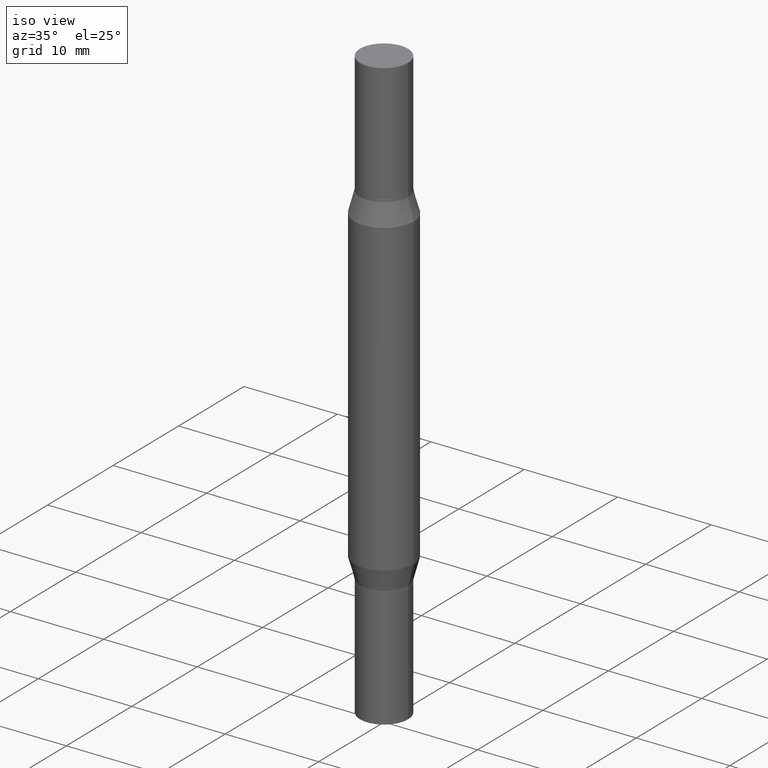
[diagram: clean part render]
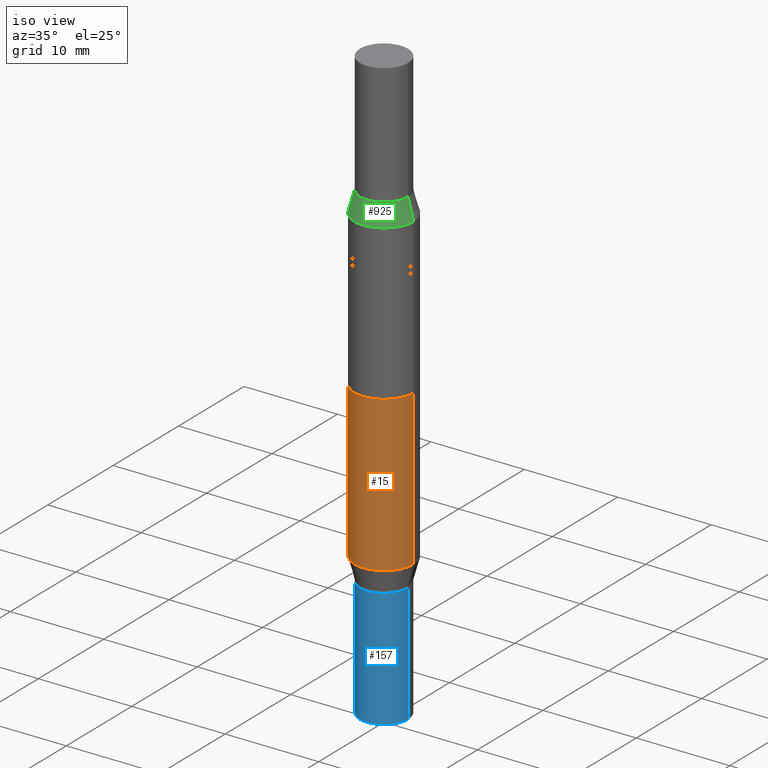
[diagram: same view with three faces highlighted in distinct colors, each labeled with its STEP entity id]
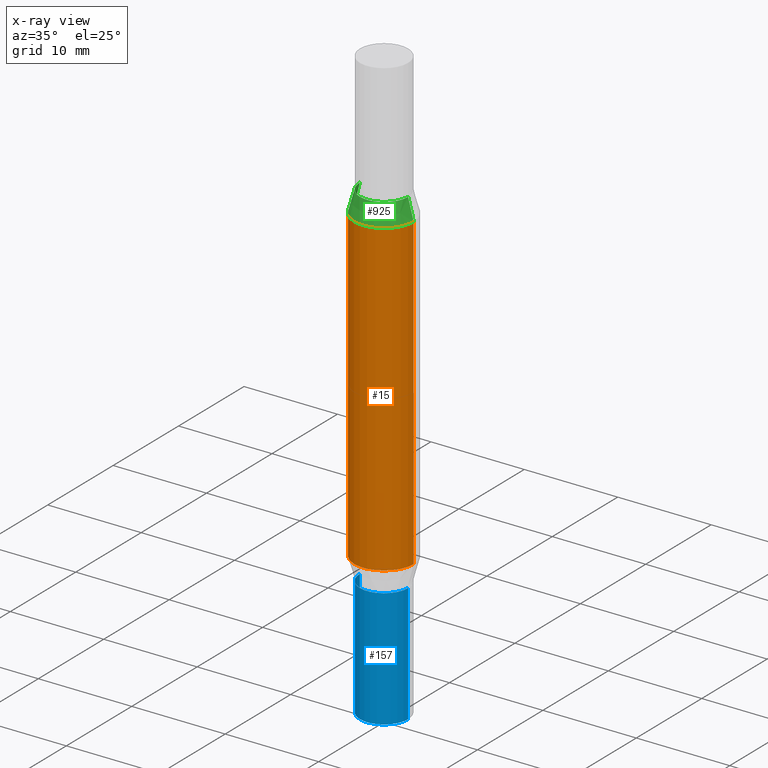
[diagram: x-ray of the same camera — body ghosted, the three highlighted faces saturated]
A machine part, iso view with three faces highlighted in distinct colors.
The next image is the same camera in x-ray (body ghosted, the three faces saturated) — at least one of them is partly hidden behind the body in this view.
Their STEP definitions:

[orange] entity #15 — the highlighted cylindrical surface (edge-blend (fillet) strip) has radius 3.175 mm, axis along (-0, -0, -1).
#6 = VECTOR ( 'NONE', #285, 39.37007874015748143 ) ;
#15 = ADVANCED_FACE ( 'NONE', ( #447 ), #673, .T. ) ;
#16 = CARTESIAN_POINT ( 'NONE',  ( 0.1250000000000000000, -2.958877117868543782E-15, -0.5975165914374901410 ) ) ;
#47 = DIRECTION ( 'NONE',  ( 1.000000000000000000, -6.982962677686266711E-15, 0.000000000000000000 ) ) ;
#79 = CARTESIAN_POINT ( 'NONE',  ( 0.000000000000000000, -8.729108042255335103E-15, -2.499999999999999556 ) ) ;
#141 = CARTESIAN_POINT ( 'NONE',  ( -0.1250000000000000000, -3.506789423832489448E-15, -1.902483408562509304 ) ) ;
#181 = CIRCLE ( 'NONE', #839, 0.1250000000000000000 ) ;
#197 = AXIS2_PLACEMENT_3D ( 'NONE', #403, #629, #930 ) ;
#204 = ORIENTED_EDGE ( 'NONE', *, *, #360, .T. ) ;
#229 = DIRECTION ( 'NONE',  ( 1.000000000000000000, -6.982962677686262766E-15, 0.000000000000000000 ) ) ;
#232 = EDGE_LOOP ( 'NONE', ( #635, #204, #703, #639 ) ) ;
#240 = LINE ( 'NONE', #815, #795 ) ;
#244 = VERTEX_POINT ( 'NONE', #141 ) ;
#285 = DIRECTION ( 'NONE',  ( -2.445468806185136877E-29, -3.491805094961123683E-15, -1.000000000000000000 ) ) ;
#298 = DIRECTION ( 'NONE',  ( -2.445468806185136597E-29, -3.491805094961124077E-15, -1.000000000000000000 ) ) ;
#360 = EDGE_CURVE ( 'NONE', #533, #244, #899, .T. ) ;
#403 = CARTESIAN_POINT ( 'NONE',  ( 4.652463829924389037E-29, -6.642485318454700807E-15, -1.902483408562509304 ) ) ;
#407 = DIRECTION ( 'NONE',  ( 2.445468806185136597E-29, 3.491805094961124077E-15, 1.000000000000000000 ) ) ;
#417 = CARTESIAN_POINT ( 'NONE',  ( 4.652463829924389037E-29, -2.086006783157758077E-15, -0.5975165914374901410 ) ) ;
#447 = FACE_OUTER_BOUND ( 'NONE', #232, .T. ) ;
#519 = CARTESIAN_POINT ( 'NONE',  ( 0.1250000000000000000, -7.515355653165484935E-15, -1.902483408562509304 ) ) ;
#533 = VERTEX_POINT ( 'NONE', #547 ) ;
#539 = VERTEX_POINT ( 'NONE', #16 ) ;
#547 = CARTESIAN_POINT ( 'NONE',  ( -0.1250000000000000000, -1.228444533436318603E-15, -0.5975165914374901410 ) ) ;
#629 = DIRECTION ( 'NONE',  ( -2.445468806185136597E-29, 3.491481338843145583E-15, 1.000000000000000000 ) ) ;
#635 = ORIENTED_EDGE ( 'NONE', *, *, #707, .F. ) ;
#639 = ORIENTED_EDGE ( 'NONE', *, *, #803, .F. ) ;
#651 = CIRCLE ( 'NONE', #197, 0.1250000000000000000 ) ;
#673 = CYLINDRICAL_SURFACE ( 'NONE', #729, 0.1250000000000000000 ) ;
#684 = EDGE_CURVE ( 'NONE', #244, #773, #651, .T. ) ;
#703 = ORIENTED_EDGE ( 'NONE', *, *, #684, .T. ) ;
#707 = EDGE_CURVE ( 'NONE', #533, #539, #181, .T. ) ;
#729 = AXIS2_PLACEMENT_3D ( 'NONE', #79, #298, #229 ) ;
#773 = VERTEX_POINT ( 'NONE', #519 ) ;
#795 = VECTOR ( 'NONE', #965, 39.37007874015748143 ) ;
#803 = EDGE_CURVE ( 'NONE', #539, #773, #240, .T. ) ;
#815 = CARTESIAN_POINT ( 'NONE',  ( 0.1250000000000000000, -9.601978376966118441E-15, -2.499999999999999556 ) ) ;
#823 = CARTESIAN_POINT ( 'NONE',  ( -0.1250000000000000000, -7.871545792533893657E-15, -2.499999999999999556 ) ) ;
#839 = AXIS2_PLACEMENT_3D ( 'NONE', #417, #407, #47 ) ;
#899 = LINE ( 'NONE', #823, #6 ) ;
#930 = DIRECTION ( 'NONE',  ( 1.000000000000000000, -6.982962677686270655E-15, 0.000000000000000000 ) ) ;
#965 = DIRECTION ( 'NONE',  ( -2.445468806185136877E-29, -3.491805094961123683E-15, -1.000000000000000000 ) ) ;

[blue] entity #157 — the highlighted cylindrical surface (edge-blend (fillet) strip) has radius 2.5794 mm, axis along (-0, 0, 1).
#3 = CARTESIAN_POINT ( 'NONE',  ( 0.1015500000000000708, -9.437823207026904147E-15, -2.500000000000000000 ) ) ;
#8 = VERTEX_POINT ( 'NONE', #3 ) ;
#56 = VECTOR ( 'NONE', #666, 39.37007874015748143 ) ;
#59 = EDGE_CURVE ( 'NONE', #252, #607, #424, .T. ) ;
#107 = EDGE_CURVE ( 'NONE', #607, #248, #412, .T. ) ;
#128 = CARTESIAN_POINT ( 'NONE',  ( -0.1015500000000000708, 7.215561481643822416E-16, -4.995178584153860605E-30 ) ) ;
#139 = DIRECTION ( 'NONE',  ( -2.445468806185136597E-29, 3.491481338843145583E-15, 1.000000000000000000 ) ) ;
#157 = ADVANCED_FACE ( 'NONE', ( #363 ), #736, .T. ) ;
#169 = EDGE_CURVE ( 'NONE', #252, #8, #396, .T. ) ;
#178 = AXIS2_PLACEMENT_3D ( 'NONE', #801, #661, #440 ) ;
#194 = EDGE_CURVE ( 'NONE', #8, #248, #439, .T. ) ;
#203 = DIRECTION ( 'NONE',  ( -2.445468806185136597E-29, 3.491481338843145583E-15, 1.000000000000000000 ) ) ;
#213 = CARTESIAN_POINT ( 'NONE',  ( 0.1015500000000000708, -7.692082537605332736E-15, -2.000000000000000000 ) ) ;
#218 = CARTESIAN_POINT ( 'NONE',  ( 0.000000000000000000, 0.000000000000000000, 0.000000000000000000 ) ) ;
#221 = CARTESIAN_POINT ( 'NONE',  ( -0.1015500000000000708, -7.134276864232696503E-15, -2.500000000000000000 ) ) ;
#248 = VERTEX_POINT ( 'NONE', #213 ) ;
#252 = VERTEX_POINT ( 'NONE', #221 ) ;
#299 = DIRECTION ( 'NONE',  ( -2.445468806185136877E-29, 3.491481338843145188E-15, 1.000000000000000000 ) ) ;
#318 = ORIENTED_EDGE ( 'NONE', *, *, #169, .T. ) ;
#363 = FACE_OUTER_BOUND ( 'NONE', #786, .T. ) ;
#396 = CIRCLE ( 'NONE', #883, 0.1015500000000000708 ) ;
#412 = CIRCLE ( 'NONE', #178, 0.1015500000000000708 ) ;
#420 = CARTESIAN_POINT ( 'NONE',  ( -0.1015500000000000708, -7.134276864232696503E-15, -2.000000000000000000 ) ) ;
#424 = LINE ( 'NONE', #128, #56 ) ;
#439 = LINE ( 'NONE', #809, #749 ) ;
#440 = DIRECTION ( 'NONE',  ( 1.000000000000000000, -6.982962677686269866E-15, 0.000000000000000000 ) ) ;
#518 = DIRECTION ( 'NONE',  ( 1.000000000000000000, -6.982962677686266711E-15, 4.876176775795936353E-29 ) ) ;
#607 = VERTEX_POINT ( 'NONE', #420 ) ;
#644 = CARTESIAN_POINT ( 'NONE',  ( 6.113672015462842613E-29, -8.728703347107864943E-15, -2.500000000000000000 ) ) ;
#661 = DIRECTION ( 'NONE',  ( -2.445468806185136597E-29, 3.491481338843145583E-15, 1.000000000000000000 ) ) ;
#666 = DIRECTION ( 'NONE',  ( -2.445468806185136877E-29, 3.491481338843145188E-15, 1.000000000000000000 ) ) ;
#680 = AXIS2_PLACEMENT_3D ( 'NONE', #218, #139, #518 ) ;
#687 = ORIENTED_EDGE ( 'NONE', *, *, #59, .F. ) ;
#736 = CYLINDRICAL_SURFACE ( 'NONE', #680, 0.1015500000000000708 ) ;
#749 = VECTOR ( 'NONE', #299, 39.37007874015748143 ) ;
#786 = EDGE_LOOP ( 'NONE', ( #687, #318, #855, #841 ) ) ;
#801 = CARTESIAN_POINT ( 'NONE',  ( 4.890937612370273194E-29, -6.982962677686291165E-15, -2.000000000000000000 ) ) ;
#808 = DIRECTION ( 'NONE',  ( 1.000000000000000000, -6.982962677686259611E-15, 0.000000000000000000 ) ) ;
#809 = CARTESIAN_POINT ( 'NONE',  ( 0.1015500000000000708, -7.091198599190408807E-16, 4.951757515820776576E-30 ) ) ;
#841 = ORIENTED_EDGE ( 'NONE', *, *, #107, .F. ) ;
#855 = ORIENTED_EDGE ( 'NONE', *, *, #194, .T. ) ;
#883 = AXIS2_PLACEMENT_3D ( 'NONE', #644, #203, #808 ) ;

[green] entity #925 — the highlighted conical surface has half-angle 15 deg.
#26 = FACE_OUTER_BOUND ( 'NONE', #368, .T. ) ;
#37 = DIRECTION ( 'NONE',  ( -2.445468806185136597E-29, -3.491805094961124077E-15, -1.000000000000000000 ) ) ;
#55 = CARTESIAN_POINT ( 'NONE',  ( 0.1015499999999997377, -2.489535763201737721E-15, -0.5099999999999994538 ) ) ;
#73 = VECTOR ( 'NONE', #656, 39.37007874015748854 ) ;
#74 = DIRECTION ( 'NONE',  ( 2.445468806185136597E-29, 3.491805094961124077E-15, 1.000000000000000000 ) ) ;
#89 = CIRCLE ( 'NONE', #781, 0.1015499999999997377 ) ;
#95 = CARTESIAN_POINT ( 'NONE',  ( 4.866482924308422209E-29, -1.780415903282698911E-15, -0.5099999999999994538 ) ) ;
#100 = DIRECTION ( 'NONE',  ( -0.2588190451025219607, -1.597197180879709001E-15, -0.9659258262890678681 ) ) ;
#103 = CARTESIAN_POINT ( 'NONE',  ( -0.1015499999999997377, -1.067146257407934882E-15, -0.5099999999999994538 ) ) ;
#132 = EDGE_CURVE ( 'NONE', #166, #912, #871, .T. ) ;
#147 = DIRECTION ( 'NONE',  ( 2.445468806185136597E-29, 3.491805094961124077E-15, 1.000000000000000000 ) ) ;
#166 = VERTEX_POINT ( 'NONE', #357 ) ;
#175 = LINE ( 'NONE', #465, #825 ) ;
#179 = DIRECTION ( 'NONE',  ( 1.000000000000000000, -6.982962677686268288E-15, 0.000000000000000000 ) ) ;
#205 = DIRECTION ( 'NONE',  ( 1.000000000000000000, -6.982962677686268288E-15, 0.000000000000000000 ) ) ;
#207 = CARTESIAN_POINT ( 'NONE',  ( 4.652463829924389037E-29, -2.086006783157758077E-15, -0.5975165914374901410 ) ) ;
#250 = ORIENTED_EDGE ( 'NONE', *, *, #756, .F. ) ;
#279 = EDGE_CURVE ( 'NONE', #460, #912, #303, .T. ) ;
#281 = DIRECTION ( 'NONE',  ( 1.000000000000000000, -6.982962677686266711E-15, 0.000000000000000000 ) ) ;
#283 = CARTESIAN_POINT ( 'NONE',  ( 4.866482924308422209E-29, -1.780415903282698911E-15, -0.5099999999999994538 ) ) ;
#303 = CIRCLE ( 'NONE', #714, 0.1250000000000000000 ) ;
#307 = ORIENTED_EDGE ( 'NONE', *, *, #132, .F. ) ;
#357 = CARTESIAN_POINT ( 'NONE',  ( 0.1015499999999997377, -2.489535763201737721E-15, -0.5099999999999994538 ) ) ;
#368 = EDGE_LOOP ( 'NONE', ( #250, #487, #613, #307 ) ) ;
#460 = VERTEX_POINT ( 'NONE', #529 ) ;
#465 = CARTESIAN_POINT ( 'NONE',  ( -0.1015499999999997377, -1.083732331609001856E-15, -0.5099999999999994538 ) ) ;
#467 = CARTESIAN_POINT ( 'NONE',  ( 0.1250000000000000000, -2.958877117868543782E-15, -0.5975165914374901410 ) ) ;
#487 = ORIENTED_EDGE ( 'NONE', *, *, #499, .T. ) ;
#499 = EDGE_CURVE ( 'NONE', #971, #460, #175, .T. ) ;
#529 = CARTESIAN_POINT ( 'NONE',  ( -0.1250000000000000000, -1.228444533436318603E-15, -0.5975165914374901410 ) ) ;
#613 = ORIENTED_EDGE ( 'NONE', *, *, #279, .T. ) ;
#656 = DIRECTION ( 'NONE',  ( 0.2588190451025219607, -5.180148453816008779E-15, -0.9659258262890678681 ) ) ;
#702 = CONICAL_SURFACE ( 'NONE', #887, 0.1015499999999997377, 0.2617993877991507401 ) ;
#714 = AXIS2_PLACEMENT_3D ( 'NONE', #207, #74, #281 ) ;
#756 = EDGE_CURVE ( 'NONE', #971, #166, #89, .T. ) ;
#781 = AXIS2_PLACEMENT_3D ( 'NONE', #283, #147, #205 ) ;
#825 = VECTOR ( 'NONE', #100, 39.37007874015748854 ) ;
#871 = LINE ( 'NONE', #55, #73 ) ;
#887 = AXIS2_PLACEMENT_3D ( 'NONE', #95, #37, #179 ) ;
#912 = VERTEX_POINT ( 'NONE', #467 ) ;
#925 = ADVANCED_FACE ( 'NONE', ( #26 ), #702, .T. ) ;
#971 = VERTEX_POINT ( 'NONE', #103 ) ;